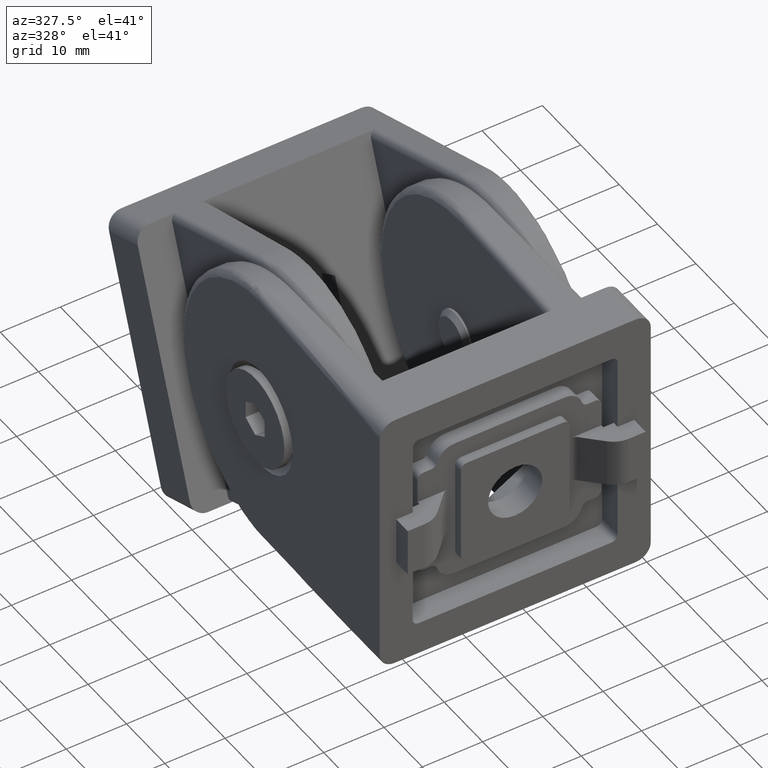
[diagram: clean part render]
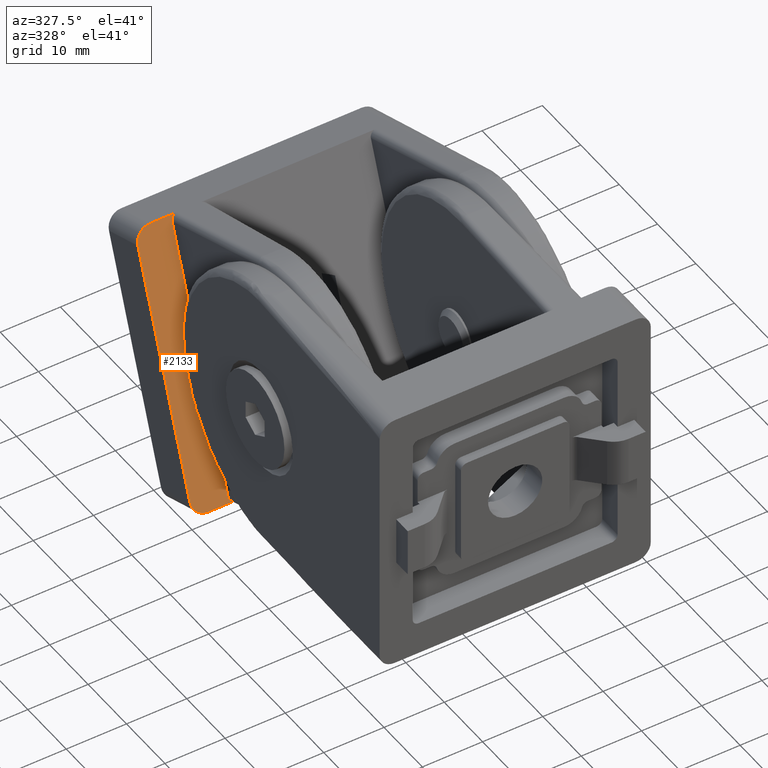
[diagram: same view with one face highlighted and labeled with its STEP entity id]
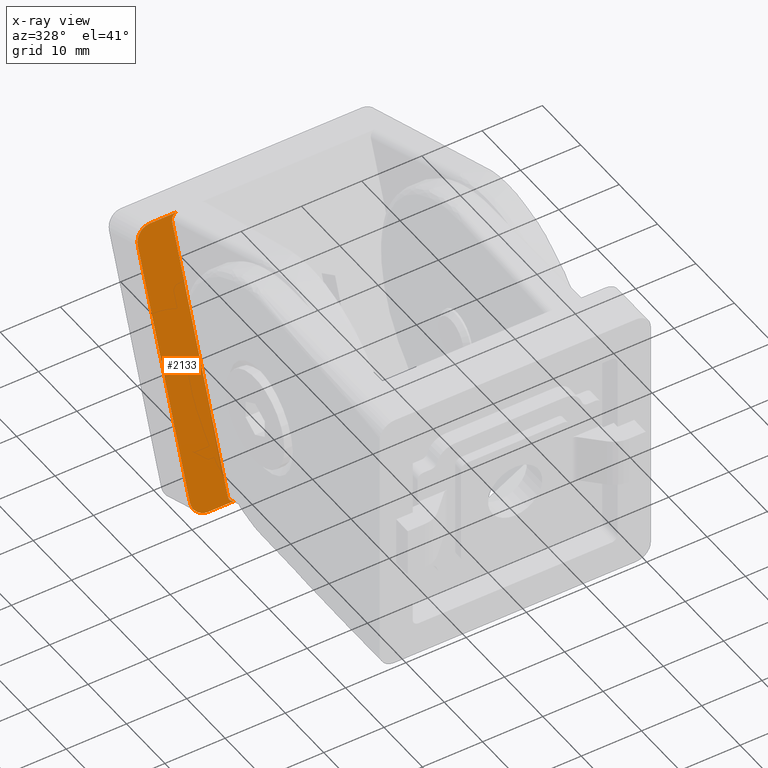
[diagram: x-ray of the same camera — body ghosted, the highlighted face saturated]
A machine part, auxiliary view. The second image highlights one B-rep face of the part: STEP entity #2133.
The next image is the same camera in x-ray: the body ghosted, the highlighted face saturated — about 1% of this face is hidden behind the body in this view.
In plain terms, the highlighted planar face has unit normal (0, 0.9409, -0.3387).
Its self-contained STEP definition (entity closure, byte-faithful):
#50=LINE('',#3275,#240);
#54=LINE('',#3287,#244);
#55=LINE('',#3291,#245);
#56=LINE('',#3294,#246);
#240=VECTOR('',#2503,40.);
#244=VECTOR('',#2513,4.50003807838572);
#245=VECTOR('',#2516,43.);
#246=VECTOR('',#2519,4.50003807838574);
#431=PLANE('',#2270);
#519=ELLIPSE('',#2273,1.00003807838574,1.);
#520=ELLIPSE('',#2274,1.00003807838574,1.);
#577=FACE_OUTER_BOUND('',#705,.T.);
#705=EDGE_LOOP('',(#1500,#1501,#1502,#1503,#1504,#1505,#1506,#1507));
#857=CIRCLE('',#2271,2.5);
#858=CIRCLE('',#2272,2.5);
#969=VERTEX_POINT('',#3273);
#970=VERTEX_POINT('',#3274);
#973=VERTEX_POINT('',#3282);
#974=VERTEX_POINT('',#3284);
#975=VERTEX_POINT('',#3286);
#976=VERTEX_POINT('',#3288);
#977=VERTEX_POINT('',#3290);
#978=VERTEX_POINT('',#3292);
#1179=EDGE_CURVE('',#969,#970,#50,.T.);
#1183=EDGE_CURVE('',#969,#973,#857,.T.);
#1184=EDGE_CURVE('',#974,#970,#858,.T.);
#1185=EDGE_CURVE('',#974,#975,#54,.T.);
#1186=EDGE_CURVE('',#975,#976,#519,.T.);
#1187=EDGE_CURVE('',#977,#976,#55,.T.);
#1188=EDGE_CURVE('',#977,#978,#520,.T.);
#1189=EDGE_CURVE('',#973,#978,#56,.T.);
#1500=ORIENTED_EDGE('',*,*,#1183,.F.);
#1501=ORIENTED_EDGE('',*,*,#1179,.T.);
#1502=ORIENTED_EDGE('',*,*,#1184,.F.);
#1503=ORIENTED_EDGE('',*,*,#1185,.T.);
#1504=ORIENTED_EDGE('',*,*,#1186,.T.);
#1505=ORIENTED_EDGE('',*,*,#1187,.F.);
#1506=ORIENTED_EDGE('',*,*,#1188,.T.);
#1507=ORIENTED_EDGE('',*,*,#1189,.F.);
#2133=ADVANCED_FACE('',(#577),#431,.F.);
#2270=AXIS2_PLACEMENT_3D('',#3281,#2507,#2508);
#2271=AXIS2_PLACEMENT_3D('',#3283,#2509,#2510);
#2272=AXIS2_PLACEMENT_3D('',#3285,#2511,#2512);
#2273=AXIS2_PLACEMENT_3D('',#3289,#2514,#2515);
#2274=AXIS2_PLACEMENT_3D('',#3293,#2517,#2518);
#2503=DIRECTION('',(0.,0.,-1.));
#2507=DIRECTION('center_axis',(0.,-1.,0.));
#2508=DIRECTION('ref_axis',(0.,0.,-1.));
#2509=DIRECTION('center_axis',(0.,-1.,0.));
#2510=DIRECTION('ref_axis',(0.,0.,-1.));
#2511=DIRECTION('center_axis',(0.,-1.,0.));
#2512=DIRECTION('ref_axis',(0.,0.,-1.));
#2513=DIRECTION('',(-1.,0.,0.));
#2514=DIRECTION('center_axis',(0.,-1.,0.));
#2515=DIRECTION('ref_axis',(1.,0.,0.));
#2516=DIRECTION('',(0.,0.,-1.));
#2517=DIRECTION('center_axis',(0.,-1.,0.));
#2518=DIRECTION('ref_axis',(-1.,0.,0.));
#2519=DIRECTION('',(-1.,0.,0.));
#3273=CARTESIAN_POINT('',(22.5,8.,42.5));
#3274=CARTESIAN_POINT('',(22.5,8.,2.50000000000002));
#3275=CARTESIAN_POINT('',(22.5,8.,45.));
#3281=CARTESIAN_POINT('Origin',(22.5,8.,45.));
#3282=CARTESIAN_POINT('',(20.,8.,45.));
#3283=CARTESIAN_POINT('Origin',(20.,8.,42.5));
#3284=CARTESIAN_POINT('',(20.,8.,0.));
#3285=CARTESIAN_POINT('Origin',(20.,8.,2.5));
#3286=CARTESIAN_POINT('',(15.4999619216143,8.,0.));
#3287=CARTESIAN_POINT('',(22.5,8.,0.));
#3288=CARTESIAN_POINT('',(16.5,8.,1.00000000000001));
#3289=CARTESIAN_POINT('Origin',(15.4999619216143,8.,1.));
#3290=CARTESIAN_POINT('',(16.5,8.,44.));
#3291=CARTESIAN_POINT('',(16.5,8.,45.));
#3292=CARTESIAN_POINT('',(15.4999619216143,8.,45.));
#3293=CARTESIAN_POINT('Origin',(15.4999619216143,8.,44.));
#3294=CARTESIAN_POINT('',(22.5,8.,45.));